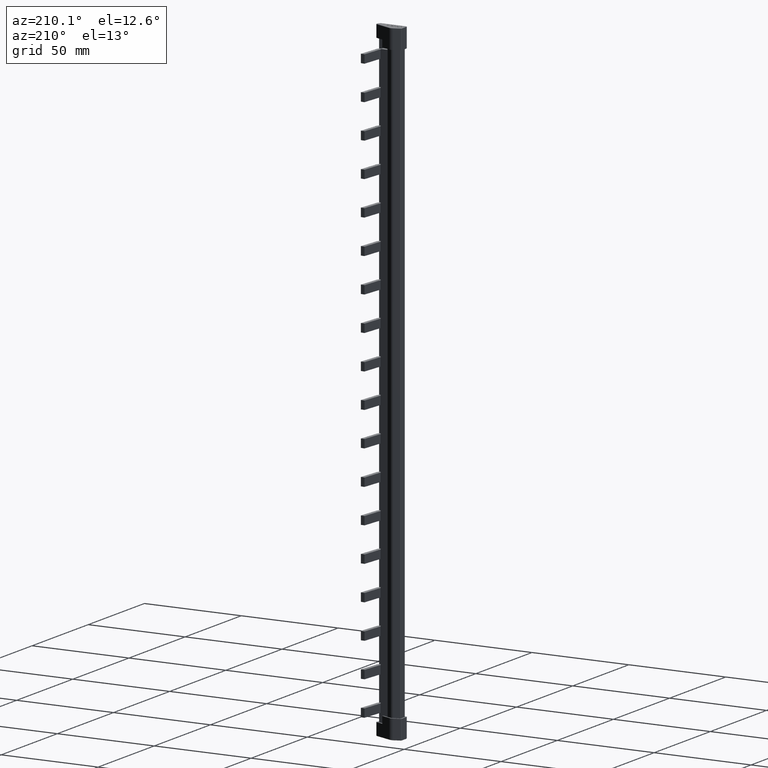
[diagram: clean part render]
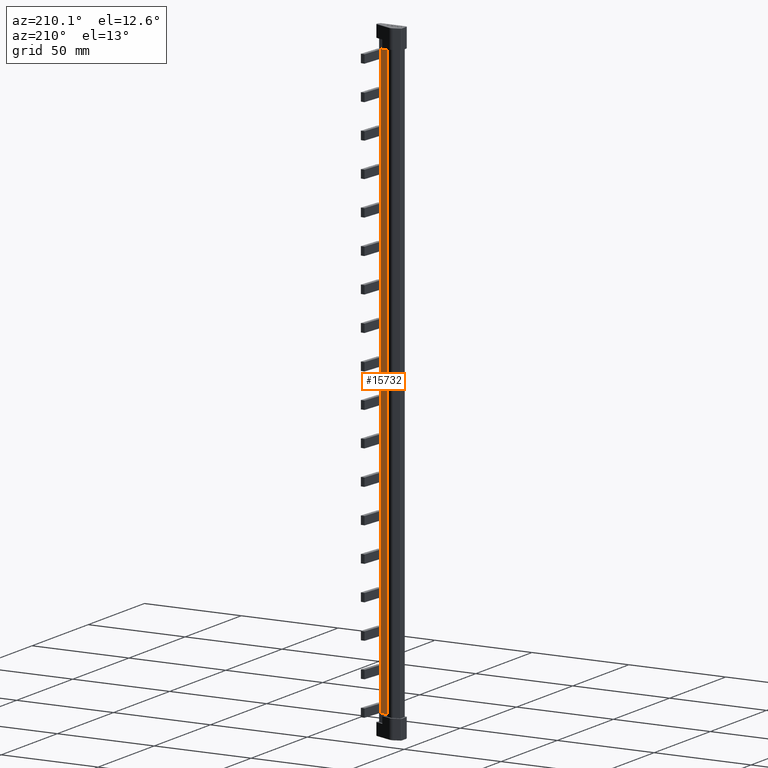
[diagram: same view with one face highlighted and labeled with its STEP entity id]
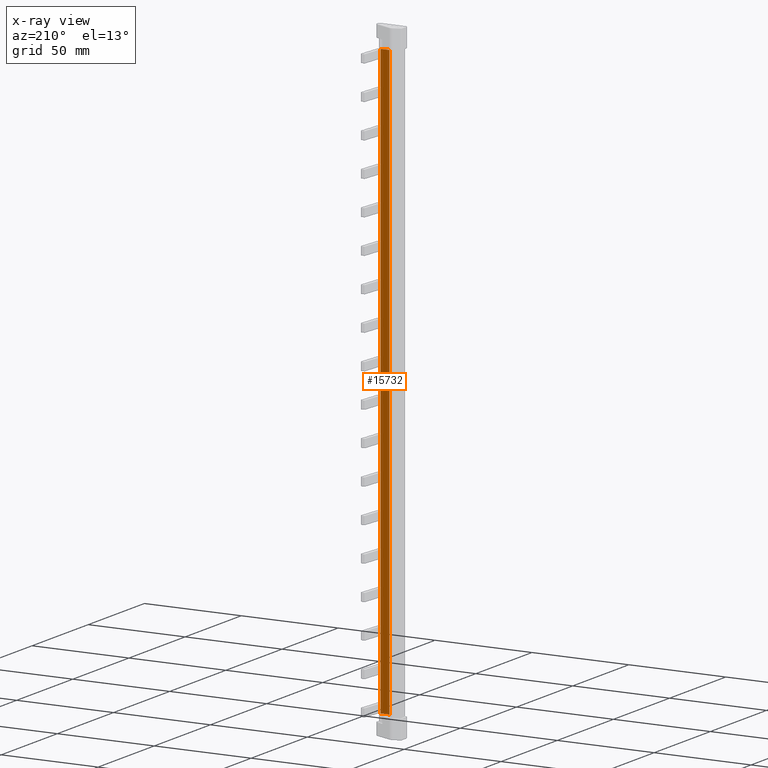
[diagram: x-ray of the same camera — body ghosted, the highlighted face saturated]
A machine part, auxiliary view. The second image highlights one B-rep face of the part: STEP entity #15732.
The next image is the same camera in x-ray: the body ghosted, the highlighted face saturated — about 0% of this face is hidden behind the body in this view.
In plain terms, the highlighted planar face has unit normal (-0, -1, 0).
Its self-contained STEP definition (entity closure, byte-faithful):
#67 = EDGE_CURVE ( 'NONE', #26734, #26753, #20892, .T. ) ;
#192 = EDGE_CURVE ( 'NONE', #26723, #26842, #20038, .T. ) ;
#678 = EDGE_CURVE ( 'NONE', #26842, #26734, #3789, .T. ) ;
#692 = EDGE_CURVE ( 'NONE', #26753, #26723, #3831, .T. ) ;
#1103 = VECTOR ( 'NONE', #3783, 1000.000000000000000 ) ;
#1201 = VECTOR ( 'NONE', #20912, 1000.000000000000000 ) ;
#1238 = VECTOR ( 'NONE', #3820, 1000.000000000000000 ) ;
#1309 = VECTOR ( 'NONE', #20029, 1000.000000000000000 ) ;
#3783 = DIRECTION ( 'NONE',  ( 1.000000000000000000, -4.379063324521068500E-047, 1.135608888882319300E-069 ) ) ;
#3789 = LINE ( 'NONE', #3790, #1103 ) ;
#3790 = CARTESIAN_POINT ( 'NONE',  ( 0.5999928904455424900, 3.100000585347644200, -95.00000000000000000 ) ) ;
#3820 = DIRECTION ( 'NONE',  ( -1.000000000000000000, 4.379063324521068500E-047, -1.135608888882319300E-069 ) ) ;
#3831 = LINE ( 'NONE', #3854, #1238 ) ;
#3854 = CARTESIAN_POINT ( 'NONE',  ( 0.5999928904455424900, 3.100000585347644200, 209.0000000000000000 ) ) ;
#4398 = AXIS2_PLACEMENT_3D ( 'NONE', #13952, #13991, #14087 ) ;
#6642 = CARTESIAN_POINT ( 'NONE',  ( 10.37430495582721700, 3.100000585347644200, -95.00000000000001400 ) ) ;
#6667 = CARTESIAN_POINT ( 'NONE',  ( 5.839261004356521800, 3.100000585347644200, 209.0000000000000300 ) ) ;
#6722 = CARTESIAN_POINT ( 'NONE',  ( 10.37430495582722900, 3.100000585347644200, 209.0000000000000000 ) ) ;
#6828 = CARTESIAN_POINT ( 'NONE',  ( 5.839261004356521800, 3.100000585347644200, -95.00000000000000000 ) ) ;
#8154 = ORIENTED_EDGE ( 'NONE', *, *, #192, .F. ) ;
#8157 = ORIENTED_EDGE ( 'NONE', *, *, #678, .F. ) ;
#8168 = ORIENTED_EDGE ( 'NONE', *, *, #692, .F. ) ;
#8178 = ORIENTED_EDGE ( 'NONE', *, *, #67, .F. ) ;
#13679 = PLANE ( 'NONE',  #4398 ) ;
#13952 = CARTESIAN_POINT ( 'NONE',  ( 0.5999928904455424900, 3.100000585347644200, 207.9000000000000100 ) ) ;
#13991 = DIRECTION ( 'NONE',  ( -4.379063324521068500E-047, -1.000000000000000000, 2.593268936129210100E-023 ) ) ;
#14087 = DIRECTION ( 'NONE',  ( 0.0000000000000000000, -2.593268936129210100E-023, -1.000000000000000000 ) ) ;
#14504 = FACE_OUTER_BOUND ( 'NONE', #26518, .T. ) ;
#15732 = ADVANCED_FACE ( 'NONE', ( #14504 ), #13679, .F. ) ;
#20029 = DIRECTION ( 'NONE',  ( -1.174935236590071000E-018, -5.041208906165829300E-019, -1.000000000000000000 ) ) ;
#20038 = LINE ( 'NONE', #20056, #1309 ) ;
#20056 = CARTESIAN_POINT ( 'NONE',  ( 5.839261004356521800, 3.100000585347644200, 219.0000000000000000 ) ) ;
#20892 = LINE ( 'NONE', #20913, #1201 ) ;
#20912 = DIRECTION ( 'NONE',  ( -0.0000000000000000000, 2.593268936129210100E-023, 1.000000000000000000 ) ) ;
#20913 = CARTESIAN_POINT ( 'NONE',  ( 10.37430495582721900, 3.100000585347644200, 207.9000000000000100 ) ) ;
#26518 = EDGE_LOOP ( 'NONE', ( #8157, #8154, #8168, #8178 ) ) ;
#26723 = VERTEX_POINT ( 'NONE', #6667 ) ;
#26734 = VERTEX_POINT ( 'NONE', #6642 ) ;
#26753 = VERTEX_POINT ( 'NONE', #6722 ) ;
#26842 = VERTEX_POINT ( 'NONE', #6828 ) ;